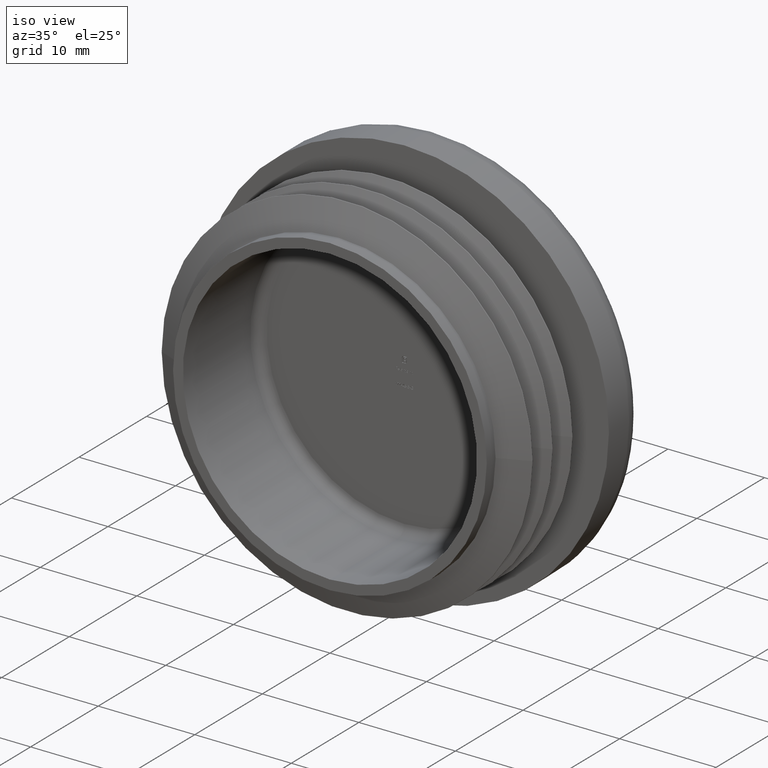
[diagram: clean part render]
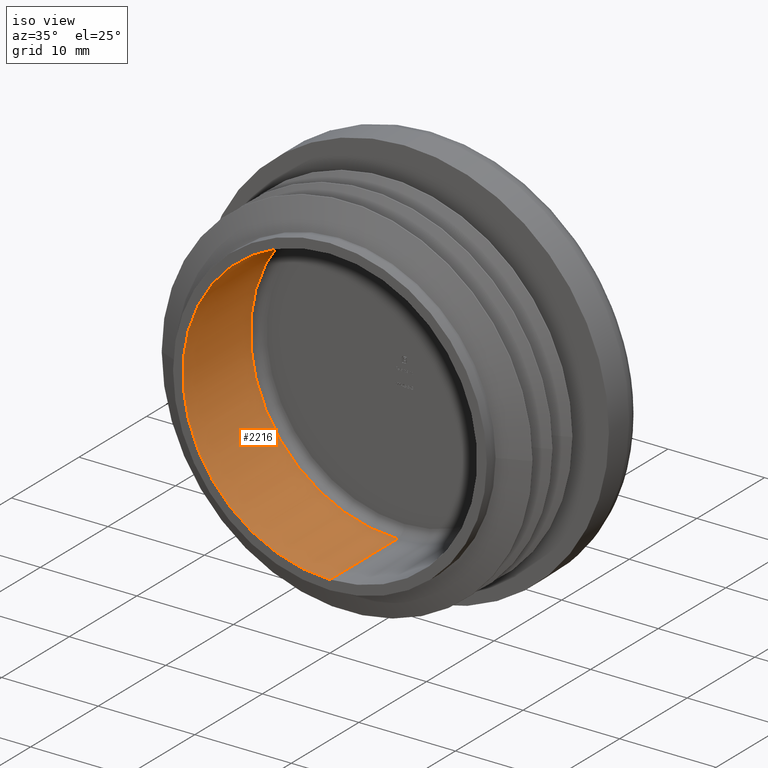
[diagram: same view with one face highlighted and labeled with its STEP entity id]
A machine part, iso view. The second image highlights one B-rep face of the part: STEP entity #2216.
In plain terms, the highlighted cylindrical surface (partial cylindrical patch) has radius 15.25 mm, axis along (-0, -1, -0).
Its self-contained STEP definition (entity closure, byte-faithful):
#98 = EDGE_CURVE ( 'NONE', #11363, #9270, #12896, .T. ) ;
#285 = DIRECTION ( 'NONE',  ( 0.000000000000000000, 0.000000000000000000, -1.000000000000000000 ) ) ;
#318 = DIRECTION ( 'NONE',  ( -0.000000000000000000, -1.000000000000000000, -0.000000000000000000 ) ) ;
#480 = EDGE_LOOP ( 'NONE', ( #3211, #10717, #9167, #5470 ) ) ;
#766 = DIRECTION ( 'NONE',  ( -0.000000000000000000, -1.000000000000000000, -0.000000000000000000 ) ) ;
#2058 = CARTESIAN_POINT ( 'NONE',  ( 0.000000000000000000, 11.00000000000000000, -15.25000000000000000 ) ) ;
#2216 = ADVANCED_FACE ( 'NONE', ( #3376 ), #9080, .F. ) ;
#2431 = CARTESIAN_POINT ( 'NONE',  ( 0.000000000000000000, 0.000000000000000000, -15.25000000000000000 ) ) ;
#3211 = ORIENTED_EDGE ( 'NONE', *, *, #4965, .T. ) ;
#3376 = FACE_OUTER_BOUND ( 'NONE', #480, .T. ) ;
#4151 = CARTESIAN_POINT ( 'NONE',  ( 1.867586368699713770E-15, 9.999999999999998224, 15.25000000000000000 ) ) ;
#4465 = CARTESIAN_POINT ( 'NONE',  ( 0.000000000000000000, 9.999999999999998224, 0.000000000000000000 ) ) ;
#4965 = EDGE_CURVE ( 'NONE', #12089, #5947, #7180, .T. ) ;
#5469 = AXIS2_PLACEMENT_3D ( 'NONE', #4465, #13011, #285 ) ;
#5470 = ORIENTED_EDGE ( 'NONE', *, *, #12025, .F. ) ;
#5646 = AXIS2_PLACEMENT_3D ( 'NONE', #9945, #318, #9858 ) ;
#5947 = VERTEX_POINT ( 'NONE', #4151 ) ;
#7180 = CIRCLE ( 'NONE', #5469, 15.25000000000000000 ) ;
#8460 = DIRECTION ( 'NONE',  ( -0.000000000000000000, -1.000000000000000000, -0.000000000000000000 ) ) ;
#9011 = VECTOR ( 'NONE', #766, 1000.000000000000000 ) ;
#9080 = CYLINDRICAL_SURFACE ( 'NONE', #9133, 15.25000000000000000 ) ;
#9133 = AXIS2_PLACEMENT_3D ( 'NONE', #9996, #12118, #12215 ) ;
#9167 = ORIENTED_EDGE ( 'NONE', *, *, #98, .T. ) ;
#9270 = VERTEX_POINT ( 'NONE', #2431 ) ;
#9673 = LINE ( 'NONE', #11509, #9011 ) ;
#9858 = DIRECTION ( 'NONE',  ( 0.000000000000000000, 0.000000000000000000, -1.000000000000000000 ) ) ;
#9945 = CARTESIAN_POINT ( 'NONE',  ( 0.000000000000000000, 0.000000000000000000, 0.000000000000000000 ) ) ;
#9996 = CARTESIAN_POINT ( 'NONE',  ( 0.000000000000000000, 11.00000000000000000, 0.000000000000000000 ) ) ;
#10717 = ORIENTED_EDGE ( 'NONE', *, *, #13060, .T. ) ;
#10814 = CARTESIAN_POINT ( 'NONE',  ( 0.000000000000000000, 9.999999999999998224, -15.25000000000000000 ) ) ;
#11332 = LINE ( 'NONE', #2058, #12991 ) ;
#11363 = VERTEX_POINT ( 'NONE', #12704 ) ;
#11509 = CARTESIAN_POINT ( 'NONE',  ( 1.867586368699713770E-15, 11.00000000000000000, 15.25000000000000000 ) ) ;
#12025 = EDGE_CURVE ( 'NONE', #12089, #9270, #11332, .T. ) ;
#12089 = VERTEX_POINT ( 'NONE', #10814 ) ;
#12118 = DIRECTION ( 'NONE',  ( -0.000000000000000000, -1.000000000000000000, -0.000000000000000000 ) ) ;
#12215 = DIRECTION ( 'NONE',  ( 0.000000000000000000, 0.000000000000000000, -1.000000000000000000 ) ) ;
#12704 = CARTESIAN_POINT ( 'NONE',  ( 1.867586368699713770E-15, 0.000000000000000000, 15.25000000000000000 ) ) ;
#12896 = CIRCLE ( 'NONE', #5646, 15.25000000000000000 ) ;
#12991 = VECTOR ( 'NONE', #8460, 1000.000000000000000 ) ;
#13011 = DIRECTION ( 'NONE',  ( 0.000000000000000000, 1.000000000000000000, 0.000000000000000000 ) ) ;
#13060 = EDGE_CURVE ( 'NONE', #5947, #11363, #9673, .T. ) ;